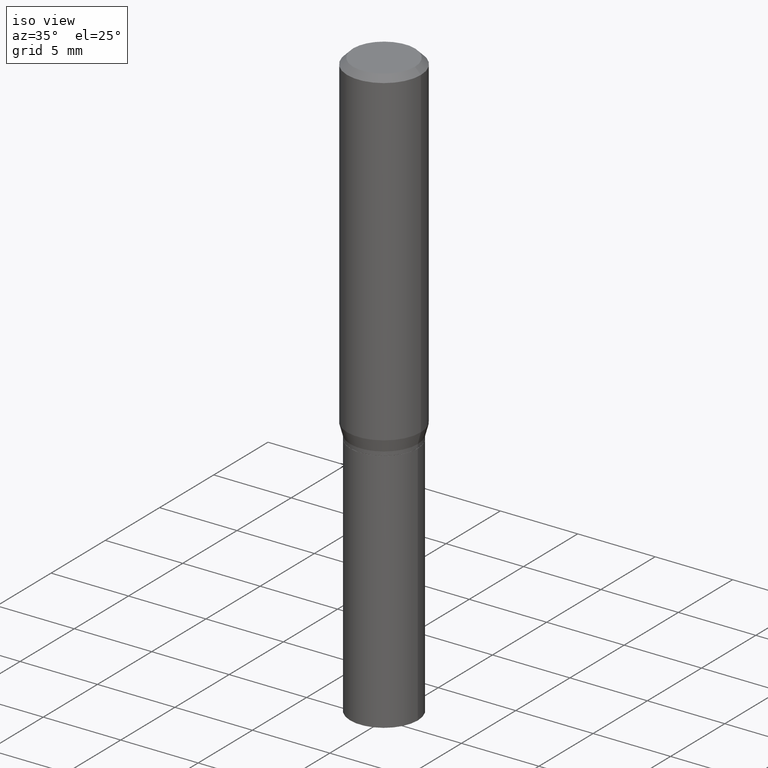
[diagram: clean part render]
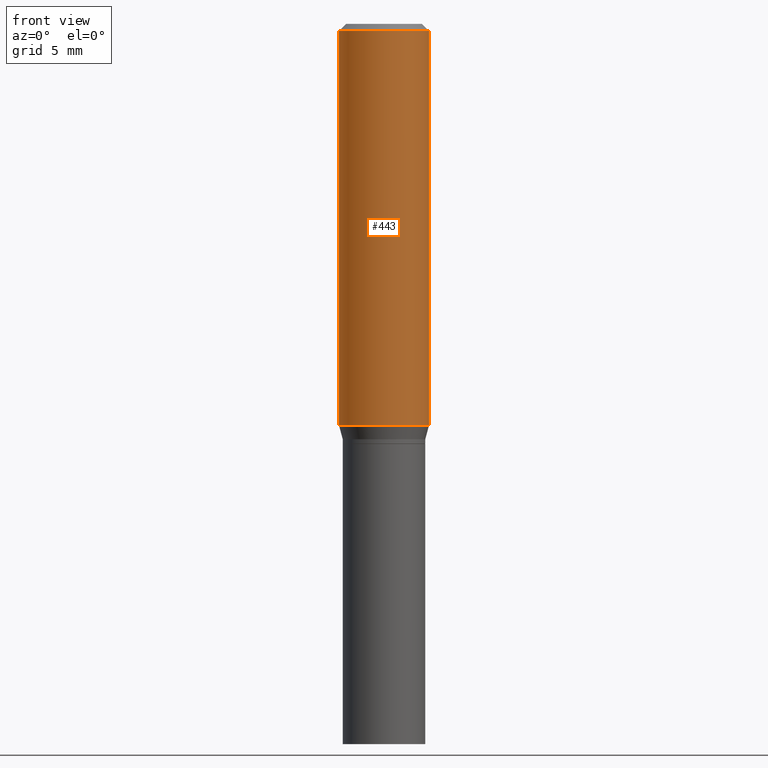
[diagram: tour spotlight — one face highlighted and labeled with its STEP entity id]
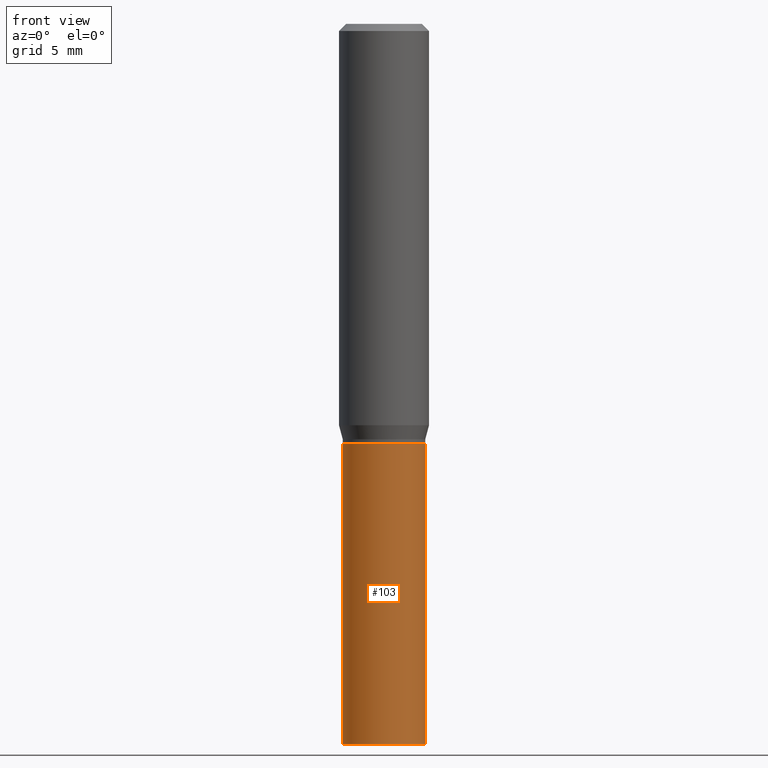
[diagram: tour spotlight — one face highlighted and labeled with its STEP entity id]
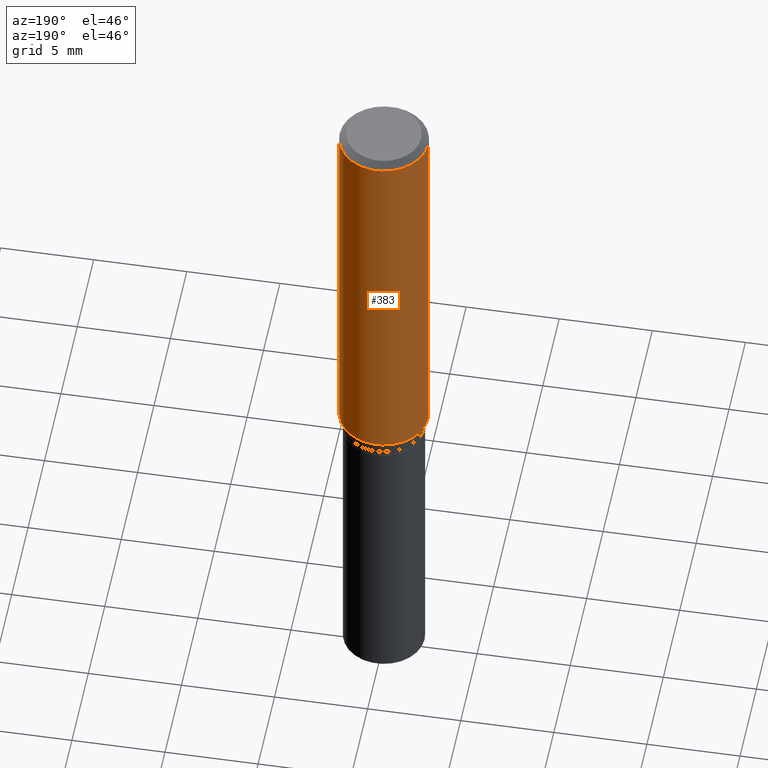
[diagram: tour spotlight — one face highlighted and labeled with its STEP entity id]
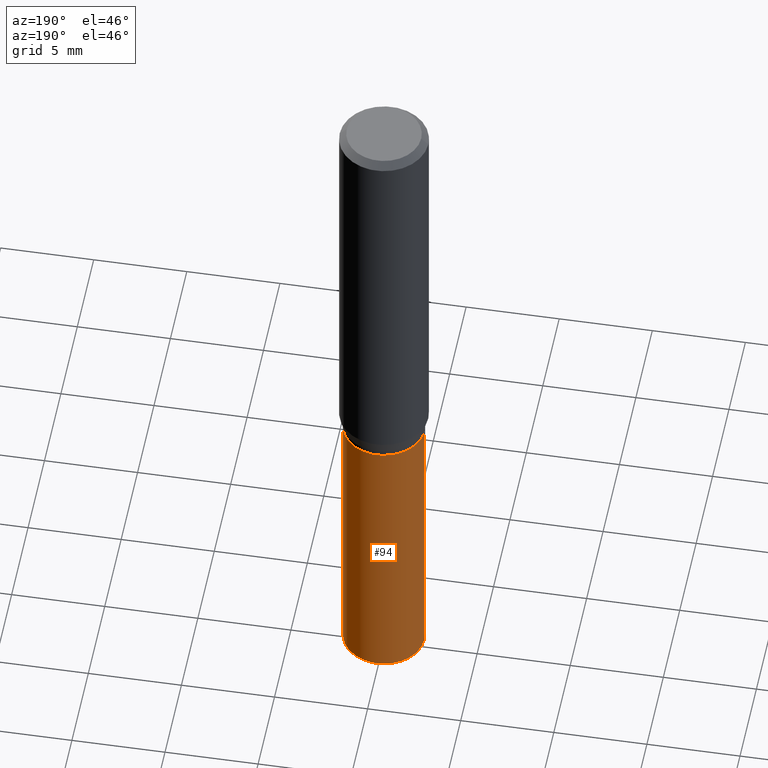
[diagram: tour spotlight — one face highlighted and labeled with its STEP entity id]
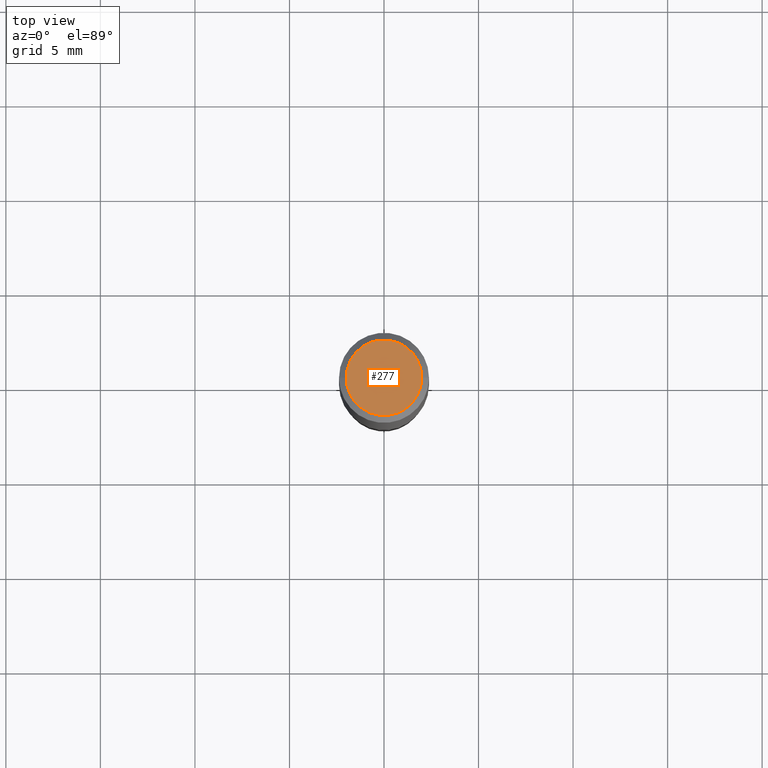
[diagram: tour spotlight — one face highlighted and labeled with its STEP entity id]
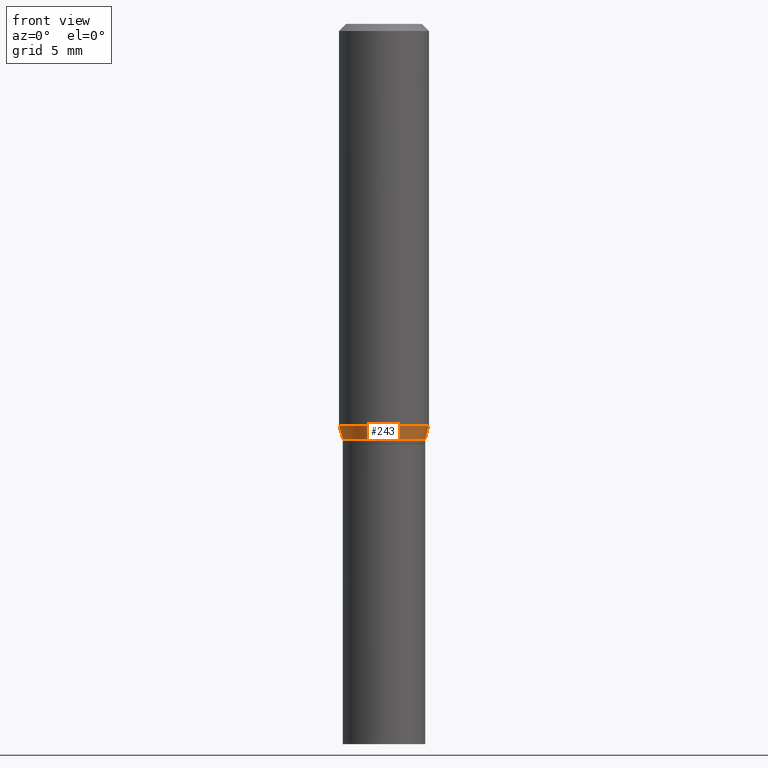
[diagram: tour spotlight — one face highlighted and labeled with its STEP entity id]
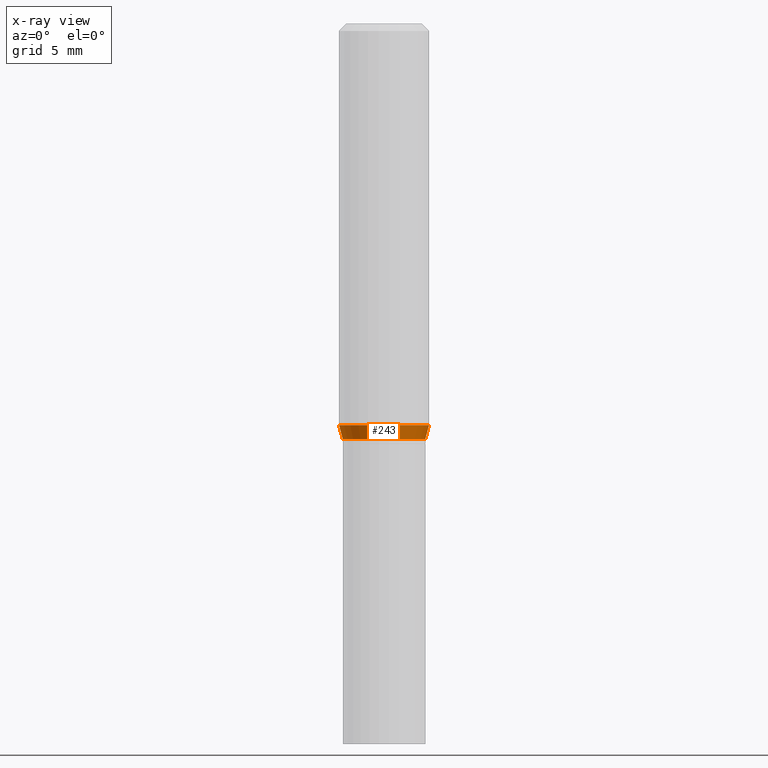
[diagram: x-ray of the same camera — body ghosted, this tour face saturated]
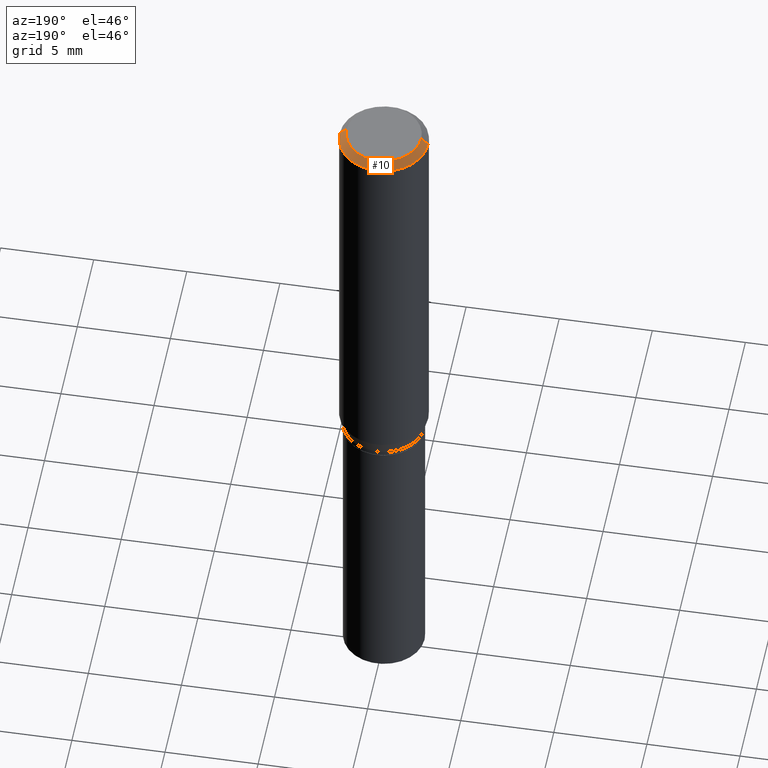
[diagram: tour spotlight — one face highlighted and labeled with its STEP entity id]
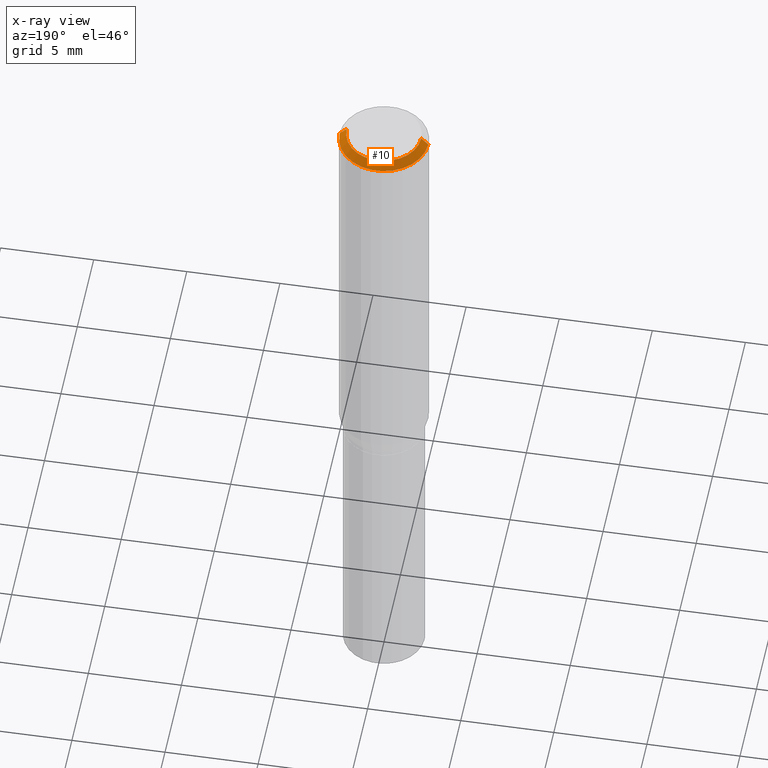
[diagram: x-ray of the same camera — body ghosted, this tour face saturated]
A machine part: a face-by-face anatomy tour. The part has 16 B-rep faces; the first image is the clean iso view, then the 7 largest visible faces are spotlighted one at a time (largest first), each with its STEP entity span.

Face 1 — front view, entity #443. In plain terms, the highlighted cylindrical surface (partial cylindrical patch) has radius 2.3813 mm, axis along (-0, 0, 1).
Definition (entity closure, byte-faithful):
#6 = CARTESIAN_POINT ( 'NONE',  ( -0.09375000000000001388, -2.252360534472345221E-15, -0.8358900037009627804 ) ) ;
#26 = LINE ( 'NONE', #390, #71 ) ;
#41 = VERTEX_POINT ( 'NONE', #334 ) ;
#42 = EDGE_CURVE ( 'NONE', #317, #75, #412, .T. ) ;
#46 = EDGE_LOOP ( 'NONE', ( #64, #91, #311, #84 ) ) ;
#51 = VECTOR ( 'NONE', #53, 39.37007874015748143 ) ;
#53 = DIRECTION ( 'NONE',  ( -2.445468806185136877E-29, 3.491481338843145188E-15, 1.000000000000000000 ) ) ;
#64 = ORIENTED_EDGE ( 'NONE', *, *, #140, .F. ) ;
#71 = VECTOR ( 'NONE', #179, 39.37007874015748143 ) ;
#75 = VERTEX_POINT ( 'NONE', #380 ) ;
#84 = ORIENTED_EDGE ( 'NONE', *, *, #198, .F. ) ;
#91 = ORIENTED_EDGE ( 'NONE', *, *, #42, .T. ) ;
#96 = CARTESIAN_POINT ( 'NONE',  ( 0.000000000000000000, 0.000000000000000000, 0.000000000000000000 ) ) ;
#100 = DIRECTION ( 'NONE',  ( -2.445468806185136597E-29, 3.491481338843145583E-15, 1.000000000000000000 ) ) ;
#107 = DIRECTION ( 'NONE',  ( 1.000000000000000000, -6.982962677686265922E-15, 4.876176775795935793E-29 ) ) ;
#108 = CYLINDRICAL_SURFACE ( 'NONE', #122, 0.09375000000000001388 ) ;
#122 = AXIS2_PLACEMENT_3D ( 'NONE', #96, #327, #107 ) ;
#140 = EDGE_CURVE ( 'NONE', #317, #41, #250, .T. ) ;
#177 = EDGE_CURVE ( 'NONE', #75, #402, #26, .T. ) ;
#179 = DIRECTION ( 'NONE',  ( -2.445468806185136877E-29, 3.491481338843145188E-15, 1.000000000000000000 ) ) ;
#198 = EDGE_CURVE ( 'NONE', #41, #402, #298, .T. ) ;
#202 = AXIS2_PLACEMENT_3D ( 'NONE', #464, #363, #439 ) ;
#223 = CARTESIAN_POINT ( 'NONE',  ( 3.668203209277705088E-31, -5.237222008264718399E-17, -0.01499999999999999944 ) ) ;
#250 = LINE ( 'NONE', #378, #51 ) ;
#264 = CARTESIAN_POINT ( 'NONE',  ( 0.09375000000000001388, -7.070249711157346819E-16, -0.01499999999999999944 ) ) ;
#298 = CIRCLE ( 'NONE', #421, 0.09375000000000001388 ) ;
#311 = ORIENTED_EDGE ( 'NONE', *, *, #177, .T. ) ;
#317 = VERTEX_POINT ( 'NONE', #6 ) ;
#327 = DIRECTION ( 'NONE',  ( -2.445468806185136597E-29, 3.491481338843145583E-15, 1.000000000000000000 ) ) ;
#332 = DIRECTION ( 'NONE',  ( 1.000000000000000000, -6.982962677686265922E-15, 0.000000000000000000 ) ) ;
#334 = CARTESIAN_POINT ( 'NONE',  ( -0.09375000000000001388, -8.192994698899494840E-16, -0.01499999999999999944 ) ) ;
#363 = DIRECTION ( 'NONE',  ( -2.445468806185136597E-29, 3.491481338843145583E-15, 1.000000000000000000 ) ) ;
#378 = CARTESIAN_POINT ( 'NONE',  ( -0.09375000000000001388, 6.661338147750940229E-16, -4.611501647113973995E-30 ) ) ;
#380 = CARTESIAN_POINT ( 'NONE',  ( 0.09375000000000001388, -3.573147100280526650E-15, -0.8358900037009627804 ) ) ;
#390 = CARTESIAN_POINT ( 'NONE',  ( 0.09375000000000001388, -6.546527510330875041E-16, 4.571415727308690506E-30 ) ) ;
#402 = VERTEX_POINT ( 'NONE', #264 ) ;
#412 = CIRCLE ( 'NONE', #202, 0.09375000000000001388 ) ;
#421 = AXIS2_PLACEMENT_3D ( 'NONE', #223, #100, #332 ) ;
#427 = FACE_OUTER_BOUND ( 'NONE', #46, .T. ) ;
#439 = DIRECTION ( 'NONE',  ( 1.000000000000000000, -6.982962677686266711E-15, 0.000000000000000000 ) ) ;
#443 = ADVANCED_FACE ( 'NONE', ( #427 ), #108, .T. ) ;
#464 = CARTESIAN_POINT ( 'NONE',  ( 2.044142929452682766E-29, -2.918494349247439540E-15, -0.8358900037009627804 ) ) ;

Face 2 — front view, entity #103. In plain terms, the highlighted cylindrical surface (partial cylindrical patch) has radius 2.1831 mm, axis along (-0, 0, 1).
Definition (entity closure, byte-faithful):
#2 = ORIENTED_EDGE ( 'NONE', *, *, #67, .T. ) ;
#8 = CARTESIAN_POINT ( 'NONE',  ( 2.139785205411994522E-29, -3.055046171487752730E-15, -0.8750000000000001110 ) ) ;
#11 = VERTEX_POINT ( 'NONE', #320 ) ;
#19 = LINE ( 'NONE', #174, #322 ) ;
#21 = CIRCLE ( 'NONE', #307, 0.08594999999999998475 ) ;
#22 = CYLINDRICAL_SURFACE ( 'NONE', #144, 0.08594999999999998475 ) ;
#28 = CARTESIAN_POINT ( 'NONE',  ( -0.08594999999999998475, 6.107114813858060014E-16, -4.227824710074091590E-30 ) ) ;
#33 = CARTESIAN_POINT ( 'NONE',  ( 0.08594999999999998475, -5.837407650411852403E-15, -1.500000000000000222 ) ) ;
#56 = DIRECTION ( 'NONE',  ( -2.445468806185136597E-29, 3.491481338843145583E-15, 1.000000000000000000 ) ) ;
#67 = EDGE_CURVE ( 'NONE', #124, #239, #19, .T. ) ;
#73 = ORIENTED_EDGE ( 'NONE', *, *, #187, .T. ) ;
#78 = DIRECTION ( 'NONE',  ( 1.000000000000000000, -6.982962677686268288E-15, 0.000000000000000000 ) ) ;
#103 = ADVANCED_FACE ( 'NONE', ( #351 ), #22, .T. ) ;
#124 = VERTEX_POINT ( 'NONE', #33 ) ;
#125 = DIRECTION ( 'NONE',  ( -2.445468806185136877E-29, 3.491481338843145188E-15, 1.000000000000000000 ) ) ;
#130 = EDGE_CURVE ( 'NONE', #11, #148, #218, .T. ) ;
#144 = AXIS2_PLACEMENT_3D ( 'NONE', #453, #425, #266 ) ;
#148 = VERTEX_POINT ( 'NONE', #379 ) ;
#149 = CARTESIAN_POINT ( 'NONE',  ( 0.08594999999999998475, -3.655231813634886956E-15, -0.8750000000000001110 ) ) ;
#167 = CIRCLE ( 'NONE', #395, 0.08594999999999998475 ) ;
#174 = CARTESIAN_POINT ( 'NONE',  ( 0.08594999999999998475, -6.001856421471345220E-16, 4.191073938796606539E-30 ) ) ;
#187 = EDGE_CURVE ( 'NONE', #11, #124, #167, .T. ) ;
#218 = LINE ( 'NONE', #28, #314 ) ;
#239 = VERTEX_POINT ( 'NONE', #149 ) ;
#258 = ORIENTED_EDGE ( 'NONE', *, *, #130, .F. ) ;
#262 = ORIENTED_EDGE ( 'NONE', *, *, #303, .F. ) ;
#266 = DIRECTION ( 'NONE',  ( 1.000000000000000000, -6.982962677686266711E-15, 4.876176775795936353E-29 ) ) ;
#267 = CARTESIAN_POINT ( 'NONE',  ( 3.668203209277704895E-29, -5.237222008264718177E-15, -1.500000000000000222 ) ) ;
#303 = EDGE_CURVE ( 'NONE', #148, #239, #21, .T. ) ;
#307 = AXIS2_PLACEMENT_3D ( 'NONE', #8, #319, #78 ) ;
#314 = VECTOR ( 'NONE', #456, 39.37007874015748143 ) ;
#319 = DIRECTION ( 'NONE',  ( -2.445468806185136597E-29, 3.491481338843145583E-15, 1.000000000000000000 ) ) ;
#320 = CARTESIAN_POINT ( 'NONE',  ( -0.08594999999999998475, -3.535422608490429551E-15, -1.500000000000000222 ) ) ;
#322 = VECTOR ( 'NONE', #125, 39.37007874015748143 ) ;
#324 = EDGE_LOOP ( 'NONE', ( #258, #73, #2, #262 ) ) ;
#351 = FACE_OUTER_BOUND ( 'NONE', #324, .T. ) ;
#359 = DIRECTION ( 'NONE',  ( 1.000000000000000000, -6.982962677686261977E-15, 0.000000000000000000 ) ) ;
#379 = CARTESIAN_POINT ( 'NONE',  ( -0.08594999999999998475, -3.535422608490429551E-15, -0.8750000000000001110 ) ) ;
#395 = AXIS2_PLACEMENT_3D ( 'NONE', #267, #56, #359 ) ;
#425 = DIRECTION ( 'NONE',  ( -2.445468806185136597E-29, 3.491481338843145583E-15, 1.000000000000000000 ) ) ;
#453 = CARTESIAN_POINT ( 'NONE',  ( 0.000000000000000000, 0.000000000000000000, 0.000000000000000000 ) ) ;
#456 = DIRECTION ( 'NONE',  ( -2.445468806185136877E-29, 3.491481338843145188E-15, 1.000000000000000000 ) ) ;

Face 3 — auxiliary view, entity #383. In plain terms, the highlighted cylindrical surface (partial cylindrical patch) has radius 2.3813 mm, axis along (-0, 0, 1).
Definition (entity closure, byte-faithful):
#6 = CARTESIAN_POINT ( 'NONE',  ( -0.09375000000000001388, -2.252360534472345221E-15, -0.8358900037009627804 ) ) ;
#7 = ORIENTED_EDGE ( 'NONE', *, *, #369, .T. ) ;
#26 = LINE ( 'NONE', #390, #71 ) ;
#41 = VERTEX_POINT ( 'NONE', #334 ) ;
#45 = AXIS2_PLACEMENT_3D ( 'NONE', #328, #415, #215 ) ;
#51 = VECTOR ( 'NONE', #53, 39.37007874015748143 ) ;
#53 = DIRECTION ( 'NONE',  ( -2.445468806185136877E-29, 3.491481338843145188E-15, 1.000000000000000000 ) ) ;
#61 = ORIENTED_EDGE ( 'NONE', *, *, #140, .T. ) ;
#71 = VECTOR ( 'NONE', #179, 39.37007874015748143 ) ;
#72 = AXIS2_PLACEMENT_3D ( 'NONE', #279, #406, #444 ) ;
#75 = VERTEX_POINT ( 'NONE', #380 ) ;
#140 = EDGE_CURVE ( 'NONE', #317, #41, #250, .T. ) ;
#177 = EDGE_CURVE ( 'NONE', #75, #402, #26, .T. ) ;
#179 = DIRECTION ( 'NONE',  ( -2.445468806185136877E-29, 3.491481338843145188E-15, 1.000000000000000000 ) ) ;
#190 = ORIENTED_EDGE ( 'NONE', *, *, #313, .F. ) ;
#193 = EDGE_LOOP ( 'NONE', ( #7, #61, #190, #283 ) ) ;
#194 = DIRECTION ( 'NONE',  ( 1.000000000000000000, -6.982962677686265922E-15, 0.000000000000000000 ) ) ;
#197 = DIRECTION ( 'NONE',  ( -2.445468806185136597E-29, 3.491481338843145583E-15, 1.000000000000000000 ) ) ;
#215 = DIRECTION ( 'NONE',  ( 1.000000000000000000, -6.982962677686265922E-15, 4.876176775795935793E-29 ) ) ;
#250 = LINE ( 'NONE', #378, #51 ) ;
#260 = FACE_OUTER_BOUND ( 'NONE', #193, .T. ) ;
#264 = CARTESIAN_POINT ( 'NONE',  ( 0.09375000000000001388, -7.070249711157346819E-16, -0.01499999999999999944 ) ) ;
#275 = CARTESIAN_POINT ( 'NONE',  ( 3.668203209277705088E-31, -5.237222008264718399E-17, -0.01499999999999999944 ) ) ;
#279 = CARTESIAN_POINT ( 'NONE',  ( 2.044142929452682766E-29, -2.918494349247439540E-15, -0.8358900037009627804 ) ) ;
#282 = CIRCLE ( 'NONE', #396, 0.09375000000000001388 ) ;
#283 = ORIENTED_EDGE ( 'NONE', *, *, #177, .F. ) ;
#313 = EDGE_CURVE ( 'NONE', #402, #41, #282, .T. ) ;
#317 = VERTEX_POINT ( 'NONE', #6 ) ;
#328 = CARTESIAN_POINT ( 'NONE',  ( 0.000000000000000000, 0.000000000000000000, 0.000000000000000000 ) ) ;
#334 = CARTESIAN_POINT ( 'NONE',  ( -0.09375000000000001388, -8.192994698899494840E-16, -0.01499999999999999944 ) ) ;
#369 = EDGE_CURVE ( 'NONE', #75, #317, #376, .T. ) ;
#376 = CIRCLE ( 'NONE', #72, 0.09375000000000001388 ) ;
#378 = CARTESIAN_POINT ( 'NONE',  ( -0.09375000000000001388, 6.661338147750940229E-16, -4.611501647113973995E-30 ) ) ;
#380 = CARTESIAN_POINT ( 'NONE',  ( 0.09375000000000001388, -3.573147100280526650E-15, -0.8358900037009627804 ) ) ;
#383 = ADVANCED_FACE ( 'NONE', ( #260 ), #387, .T. ) ;
#387 = CYLINDRICAL_SURFACE ( 'NONE', #45, 0.09375000000000001388 ) ;
#390 = CARTESIAN_POINT ( 'NONE',  ( 0.09375000000000001388, -6.546527510330875041E-16, 4.571415727308690506E-30 ) ) ;
#396 = AXIS2_PLACEMENT_3D ( 'NONE', #275, #197, #194 ) ;
#402 = VERTEX_POINT ( 'NONE', #264 ) ;
#406 = DIRECTION ( 'NONE',  ( -2.445468806185136597E-29, 3.491481338843145583E-15, 1.000000000000000000 ) ) ;
#415 = DIRECTION ( 'NONE',  ( -2.445468806185136597E-29, 3.491481338843145583E-15, 1.000000000000000000 ) ) ;
#444 = DIRECTION ( 'NONE',  ( 1.000000000000000000, -6.982962677686266711E-15, 0.000000000000000000 ) ) ;

Face 4 — auxiliary view, entity #94. In plain terms, the highlighted cylindrical surface (partial cylindrical patch) has radius 2.1831 mm, axis along (-0, 0, 1).
Definition (entity closure, byte-faithful):
#11 = VERTEX_POINT ( 'NONE', #320 ) ;
#14 = ORIENTED_EDGE ( 'NONE', *, *, #67, .F. ) ;
#19 = LINE ( 'NONE', #174, #322 ) ;
#28 = CARTESIAN_POINT ( 'NONE',  ( -0.08594999999999998475, 6.107114813858060014E-16, -4.227824710074091590E-30 ) ) ;
#33 = CARTESIAN_POINT ( 'NONE',  ( 0.08594999999999998475, -5.837407650411852403E-15, -1.500000000000000222 ) ) ;
#34 = CARTESIAN_POINT ( 'NONE',  ( 3.668203209277704895E-29, -5.237222008264718177E-15, -1.500000000000000222 ) ) ;
#52 = AXIS2_PLACEMENT_3D ( 'NONE', #34, #150, #452 ) ;
#54 = CARTESIAN_POINT ( 'NONE',  ( 0.000000000000000000, 0.000000000000000000, 0.000000000000000000 ) ) ;
#57 = DIRECTION ( 'NONE',  ( -2.445468806185136597E-29, 3.491481338843145583E-15, 1.000000000000000000 ) ) ;
#67 = EDGE_CURVE ( 'NONE', #124, #239, #19, .T. ) ;
#69 = CYLINDRICAL_SURFACE ( 'NONE', #210, 0.08594999999999998475 ) ;
#94 = ADVANCED_FACE ( 'NONE', ( #302 ), #69, .T. ) ;
#124 = VERTEX_POINT ( 'NONE', #33 ) ;
#125 = DIRECTION ( 'NONE',  ( -2.445468806185136877E-29, 3.491481338843145188E-15, 1.000000000000000000 ) ) ;
#128 = CIRCLE ( 'NONE', #342, 0.08594999999999998475 ) ;
#130 = EDGE_CURVE ( 'NONE', #11, #148, #218, .T. ) ;
#148 = VERTEX_POINT ( 'NONE', #379 ) ;
#149 = CARTESIAN_POINT ( 'NONE',  ( 0.08594999999999998475, -3.655231813634886956E-15, -0.8750000000000001110 ) ) ;
#150 = DIRECTION ( 'NONE',  ( -2.445468806185136597E-29, 3.491481338843145583E-15, 1.000000000000000000 ) ) ;
#174 = CARTESIAN_POINT ( 'NONE',  ( 0.08594999999999998475, -6.001856421471345220E-16, 4.191073938796606539E-30 ) ) ;
#210 = AXIS2_PLACEMENT_3D ( 'NONE', #54, #213, #419 ) ;
#213 = DIRECTION ( 'NONE',  ( -2.445468806185136597E-29, 3.491481338843145583E-15, 1.000000000000000000 ) ) ;
#218 = LINE ( 'NONE', #28, #314 ) ;
#228 = CARTESIAN_POINT ( 'NONE',  ( 2.139785205411994522E-29, -3.055046171487752730E-15, -0.8750000000000001110 ) ) ;
#239 = VERTEX_POINT ( 'NONE', #149 ) ;
#244 = EDGE_LOOP ( 'NONE', ( #248, #368, #437, #14 ) ) ;
#248 = ORIENTED_EDGE ( 'NONE', *, *, #430, .T. ) ;
#302 = FACE_OUTER_BOUND ( 'NONE', #244, .T. ) ;
#308 = CIRCLE ( 'NONE', #52, 0.08594999999999998475 ) ;
#314 = VECTOR ( 'NONE', #456, 39.37007874015748143 ) ;
#320 = CARTESIAN_POINT ( 'NONE',  ( -0.08594999999999998475, -3.535422608490429551E-15, -1.500000000000000222 ) ) ;
#322 = VECTOR ( 'NONE', #125, 39.37007874015748143 ) ;
#342 = AXIS2_PLACEMENT_3D ( 'NONE', #228, #57, #462 ) ;
#368 = ORIENTED_EDGE ( 'NONE', *, *, #130, .T. ) ;
#373 = EDGE_CURVE ( 'NONE', #239, #148, #128, .T. ) ;
#379 = CARTESIAN_POINT ( 'NONE',  ( -0.08594999999999998475, -3.535422608490429551E-15, -0.8750000000000001110 ) ) ;
#419 = DIRECTION ( 'NONE',  ( 1.000000000000000000, -6.982962677686266711E-15, 4.876176775795936353E-29 ) ) ;
#430 = EDGE_CURVE ( 'NONE', #124, #11, #308, .T. ) ;
#437 = ORIENTED_EDGE ( 'NONE', *, *, #373, .F. ) ;
#452 = DIRECTION ( 'NONE',  ( 1.000000000000000000, -6.982962677686261977E-15, 0.000000000000000000 ) ) ;
#456 = DIRECTION ( 'NONE',  ( -2.445468806185136877E-29, 3.491481338843145188E-15, 1.000000000000000000 ) ) ;
#462 = DIRECTION ( 'NONE',  ( 1.000000000000000000, -6.982962677686268288E-15, 0.000000000000000000 ) ) ;

Face 5 — top view, entity #277. In plain terms, the highlighted planar face has unit normal (0, -0, -1).
Definition (entity closure, byte-faithful):
#63 = DIRECTION ( 'NONE',  ( 1.000000000000000000, -6.982962677686267499E-15, 4.876807983162778740E-29 ) ) ;
#82 = AXIS2_PLACEMENT_3D ( 'NONE', #137, #349, #284 ) ;
#89 = EDGE_CURVE ( 'NONE', #447, #457, #127, .T. ) ;
#118 = ORIENTED_EDGE ( 'NONE', *, *, #89, .T. ) ;
#127 = CIRCLE ( 'NONE', #287, 0.07875000000000001443 ) ;
#137 = CARTESIAN_POINT ( 'NONE',  ( 5.499083108677934443E-16, 0.07875000000000001443, -2.663318858689025652E-16 ) ) ;
#168 = EDGE_LOOP ( 'NONE', ( #219, #118 ) ) ;
#180 = DIRECTION ( 'NONE',  ( 1.000000000000000000, -6.982962677686267499E-15, 4.876807983162778740E-29 ) ) ;
#219 = ORIENTED_EDGE ( 'NONE', *, *, #460, .T. ) ;
#233 = CARTESIAN_POINT ( 'NONE',  ( -4.217098251943042903E-46, 6.020898656931179793E-32, 1.724453912999037237E-17 ) ) ;
#242 = CIRCLE ( 'NONE', #289, 0.07875000000000001443 ) ;
#253 = CARTESIAN_POINT ( 'NONE',  ( -0.07875000000000001443, 5.760944209091169839E-16, 1.724453912998643423E-17 ) ) ;
#277 = ADVANCED_FACE ( 'NONE', ( #416 ), #455, .F. ) ;
#284 = DIRECTION ( 'NONE',  ( -1.000000000000000000, 6.982962677686265922E-15, -4.876176775795935793E-29 ) ) ;
#287 = AXIS2_PLACEMENT_3D ( 'NONE', #388, #414, #63 ) ;
#289 = AXIS2_PLACEMENT_3D ( 'NONE', #233, #355, #180 ) ;
#349 = DIRECTION ( 'NONE',  ( 2.438088387897960049E-29, -3.491481338843145188E-15, -1.000000000000000000 ) ) ;
#355 = DIRECTION ( 'NONE',  ( -2.445468806185136597E-29, 3.491481338843145583E-15, 1.000000000000000000 ) ) ;
#388 = CARTESIAN_POINT ( 'NONE',  ( -4.217098251943042903E-46, 6.020898656931179793E-32, 1.724453912999037237E-17 ) ) ;
#397 = CARTESIAN_POINT ( 'NONE',  ( 0.07875000000000001443, -6.179040623491182236E-16, 1.724453912999445534E-17 ) ) ;
#414 = DIRECTION ( 'NONE',  ( -2.445468806185136597E-29, 3.491481338843145583E-15, 1.000000000000000000 ) ) ;
#416 = FACE_OUTER_BOUND ( 'NONE', #168, .T. ) ;
#447 = VERTEX_POINT ( 'NONE', #397 ) ;
#455 = PLANE ( 'NONE',  #82 ) ;
#457 = VERTEX_POINT ( 'NONE', #253 ) ;
#460 = EDGE_CURVE ( 'NONE', #457, #447, #242, .T. ) ;

Face 6 — front view, entity #243. An x-ray twin of the same camera follows (body ghosted, this face saturated) — the face is partly hidden behind the body. In plain terms, the highlighted conical surface has half-angle 15 deg.
Definition (entity closure, byte-faithful):
#6 = CARTESIAN_POINT ( 'NONE',  ( -0.09375000000000001388, -2.252360534472345221E-15, -0.8358900037009627804 ) ) ;
#13 = LINE ( 'NONE', #135, #156 ) ;
#15 = CIRCLE ( 'NONE', #201, 0.08595000000000001250 ) ;
#17 = EDGE_CURVE ( 'NONE', #178, #75, #13, .T. ) ;
#29 = EDGE_LOOP ( 'NONE', ( #95, #169, #196, #409 ) ) ;
#42 = EDGE_CURVE ( 'NONE', #317, #75, #412, .T. ) ;
#59 = DIRECTION ( 'NONE',  ( -2.445468806185136597E-29, 3.491481338843145583E-15, 1.000000000000000000 ) ) ;
#70 = FACE_OUTER_BOUND ( 'NONE', #29, .T. ) ;
#75 = VERTEX_POINT ( 'NONE', #380 ) ;
#86 = EDGE_CURVE ( 'NONE', #113, #317, #288, .T. ) ;
#92 = DIRECTION ( 'NONE',  ( 1.000000000000000000, -6.982962677686265922E-15, 0.000000000000000000 ) ) ;
#95 = ORIENTED_EDGE ( 'NONE', *, *, #86, .F. ) ;
#99 = DIRECTION ( 'NONE',  ( 0.2588190451025214611, 1.565188264969621573E-15, 0.9659258262890682012 ) ) ;
#102 = CARTESIAN_POINT ( 'NONE',  ( -0.08595000000000001250, -2.409419876713514389E-15, -0.8649999999999998801 ) ) ;
#113 = VERTEX_POINT ( 'NONE', #221 ) ;
#126 = EDGE_CURVE ( 'NONE', #113, #178, #15, .T. ) ;
#131 = AXIS2_PLACEMENT_3D ( 'NONE', #451, #292, #325 ) ;
#135 = CARTESIAN_POINT ( 'NONE',  ( 0.08595000000000001250, -3.620317000246455307E-15, -0.8649999999999998801 ) ) ;
#156 = VECTOR ( 'NONE', #99, 39.37007874015747433 ) ;
#169 = ORIENTED_EDGE ( 'NONE', *, *, #126, .T. ) ;
#178 = VERTEX_POINT ( 'NONE', #354 ) ;
#196 = ORIENTED_EDGE ( 'NONE', *, *, #17, .T. ) ;
#201 = AXIS2_PLACEMENT_3D ( 'NONE', #384, #59, #92 ) ;
#202 = AXIS2_PLACEMENT_3D ( 'NONE', #464, #363, #439 ) ;
#214 = VECTOR ( 'NONE', #261, 39.37007874015747433 ) ;
#221 = CARTESIAN_POINT ( 'NONE',  ( -0.08595000000000001250, -2.330890205592929411E-15, -0.8649999999999998801 ) ) ;
#243 = ADVANCED_FACE ( 'NONE', ( #70 ), #440, .T. ) ;
#261 = DIRECTION ( 'NONE',  ( -0.2588190451025214611, 5.211531920934551042E-15, 0.9659258262890682012 ) ) ;
#288 = LINE ( 'NONE', #102, #214 ) ;
#292 = DIRECTION ( 'NONE',  ( -2.445468806185136597E-29, 3.491481338843145583E-15, 1.000000000000000000 ) ) ;
#317 = VERTEX_POINT ( 'NONE', #6 ) ;
#325 = DIRECTION ( 'NONE',  ( 1.000000000000000000, -6.982962677686265922E-15, 0.000000000000000000 ) ) ;
#354 = CARTESIAN_POINT ( 'NONE',  ( 0.08595000000000001250, -3.620317000246455307E-15, -0.8649999999999998801 ) ) ;
#363 = DIRECTION ( 'NONE',  ( -2.445468806185136597E-29, 3.491481338843145583E-15, 1.000000000000000000 ) ) ;
#380 = CARTESIAN_POINT ( 'NONE',  ( 0.09375000000000001388, -3.573147100280526650E-15, -0.8358900037009627804 ) ) ;
#384 = CARTESIAN_POINT ( 'NONE',  ( 2.115330517350142977E-29, -3.020131358099320686E-15, -0.8649999999999998801 ) ) ;
#409 = ORIENTED_EDGE ( 'NONE', *, *, #42, .F. ) ;
#412 = CIRCLE ( 'NONE', #202, 0.09375000000000001388 ) ;
#439 = DIRECTION ( 'NONE',  ( 1.000000000000000000, -6.982962677686266711E-15, 0.000000000000000000 ) ) ;
#440 = CONICAL_SURFACE ( 'NONE', #131, 0.08595000000000001250, 0.2617993877991501295 ) ;
#451 = CARTESIAN_POINT ( 'NONE',  ( 2.115330517350142977E-29, -3.020131358099320686E-15, -0.8649999999999998801 ) ) ;
#464 = CARTESIAN_POINT ( 'NONE',  ( 2.044142929452682766E-29, -2.918494349247439540E-15, -0.8358900037009627804 ) ) ;

Face 7 — auxiliary view, entity #10. An x-ray twin of the same camera follows (body ghosted, this face saturated) — the face is partly hidden behind the body. In plain terms, the highlighted conical surface has half-angle 45 deg.
Definition (entity closure, byte-faithful):
#10 = ADVANCED_FACE ( 'NONE', ( #170 ), #36, .T. ) ;
#30 = LINE ( 'NONE', #420, #44 ) ;
#36 = CONICAL_SURFACE ( 'NONE', #256, 0.09375000000000001388, 0.7853981633974473908 ) ;
#41 = VERTEX_POINT ( 'NONE', #334 ) ;
#44 = VECTOR ( 'NONE', #381, 39.37007874015748143 ) ;
#63 = DIRECTION ( 'NONE',  ( 1.000000000000000000, -6.982962677686267499E-15, 4.876807983162778740E-29 ) ) ;
#89 = EDGE_CURVE ( 'NONE', #447, #457, #127, .T. ) ;
#127 = CIRCLE ( 'NONE', #287, 0.07875000000000001443 ) ;
#170 = FACE_OUTER_BOUND ( 'NONE', #389, .T. ) ;
#175 = EDGE_CURVE ( 'NONE', #447, #402, #30, .T. ) ;
#184 = DIRECTION ( 'NONE',  ( -0.7071067811865469066, 2.468850131082250355E-15, -0.7071067811865481278 ) ) ;
#194 = DIRECTION ( 'NONE',  ( 1.000000000000000000, -6.982962677686265922E-15, 0.000000000000000000 ) ) ;
#197 = DIRECTION ( 'NONE',  ( -2.445468806185136597E-29, 3.491481338843145583E-15, 1.000000000000000000 ) ) ;
#199 = ORIENTED_EDGE ( 'NONE', *, *, #313, .T. ) ;
#206 = DIRECTION ( 'NONE',  ( 2.445468806185136597E-29, -3.491481338843145583E-15, -1.000000000000000000 ) ) ;
#217 = LINE ( 'NONE', #301, #269 ) ;
#231 = EDGE_CURVE ( 'NONE', #457, #41, #217, .T. ) ;
#253 = CARTESIAN_POINT ( 'NONE',  ( -0.07875000000000001443, 5.760944209091169839E-16, 1.724453912998643423E-17 ) ) ;
#256 = AXIS2_PLACEMENT_3D ( 'NONE', #371, #206, #344 ) ;
#264 = CARTESIAN_POINT ( 'NONE',  ( 0.09375000000000001388, -7.070249711157346819E-16, -0.01499999999999999944 ) ) ;
#269 = VECTOR ( 'NONE', #184, 39.37007874015748143 ) ;
#275 = CARTESIAN_POINT ( 'NONE',  ( 3.668203209277705088E-31, -5.237222008264718399E-17, -0.01499999999999999944 ) ) ;
#282 = CIRCLE ( 'NONE', #396, 0.09375000000000001388 ) ;
#287 = AXIS2_PLACEMENT_3D ( 'NONE', #388, #414, #63 ) ;
#300 = ORIENTED_EDGE ( 'NONE', *, *, #231, .F. ) ;
#301 = CARTESIAN_POINT ( 'NONE',  ( -0.09375000000000001388, 6.022805309504404249E-16, -0.01499999999999999944 ) ) ;
#313 = EDGE_CURVE ( 'NONE', #402, #41, #282, .T. ) ;
#316 = ORIENTED_EDGE ( 'NONE', *, *, #89, .F. ) ;
#334 = CARTESIAN_POINT ( 'NONE',  ( -0.09375000000000001388, -8.192994698899494840E-16, -0.01499999999999999944 ) ) ;
#344 = DIRECTION ( 'NONE',  ( -1.000000000000000000, 6.982962677686265922E-15, 0.000000000000000000 ) ) ;
#371 = CARTESIAN_POINT ( 'NONE',  ( 3.668203209277705088E-31, -5.237222008264718399E-17, -0.01499999999999999944 ) ) ;
#381 = DIRECTION ( 'NONE',  ( 0.7071067811865469066, -7.319954787623254468E-15, -0.7071067811865481278 ) ) ;
#388 = CARTESIAN_POINT ( 'NONE',  ( -4.217098251943042903E-46, 6.020898656931179793E-32, 1.724453912999037237E-17 ) ) ;
#389 = EDGE_LOOP ( 'NONE', ( #316, #411, #199, #300 ) ) ;
#396 = AXIS2_PLACEMENT_3D ( 'NONE', #275, #197, #194 ) ;
#397 = CARTESIAN_POINT ( 'NONE',  ( 0.07875000000000001443, -6.179040623491182236E-16, 1.724453912999445534E-17 ) ) ;
#402 = VERTEX_POINT ( 'NONE', #264 ) ;
#411 = ORIENTED_EDGE ( 'NONE', *, *, #175, .T. ) ;
#414 = DIRECTION ( 'NONE',  ( -2.445468806185136597E-29, 3.491481338843145583E-15, 1.000000000000000000 ) ) ;
#420 = CARTESIAN_POINT ( 'NONE',  ( 0.09375000000000001388, -6.955439073737282618E-16, -0.01499999999999999944 ) ) ;
#447 = VERTEX_POINT ( 'NONE', #397 ) ;
#457 = VERTEX_POINT ( 'NONE', #253 ) ;